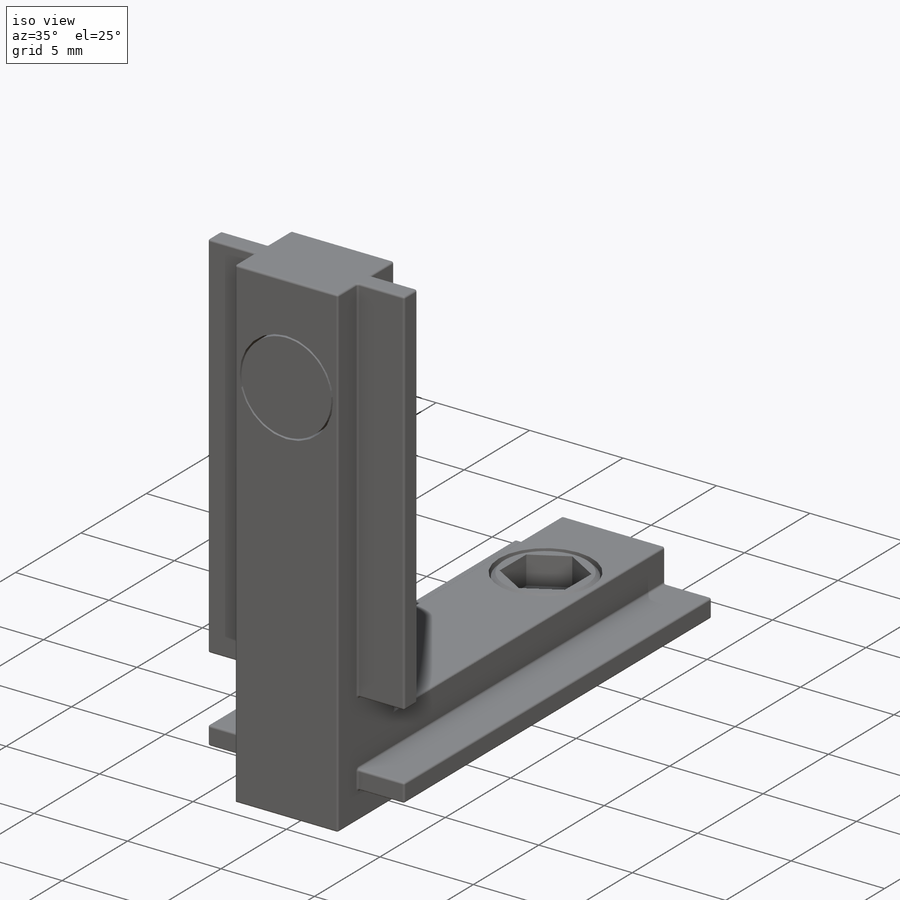
[diagram: iso view]
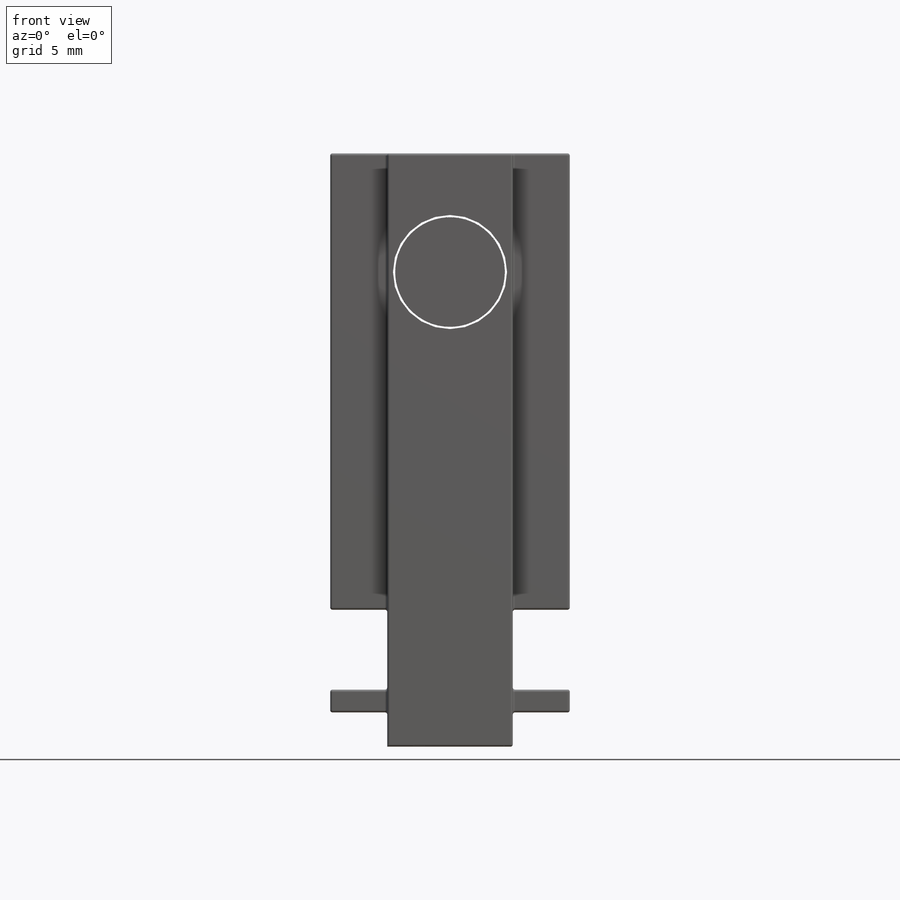
[diagram: front view]
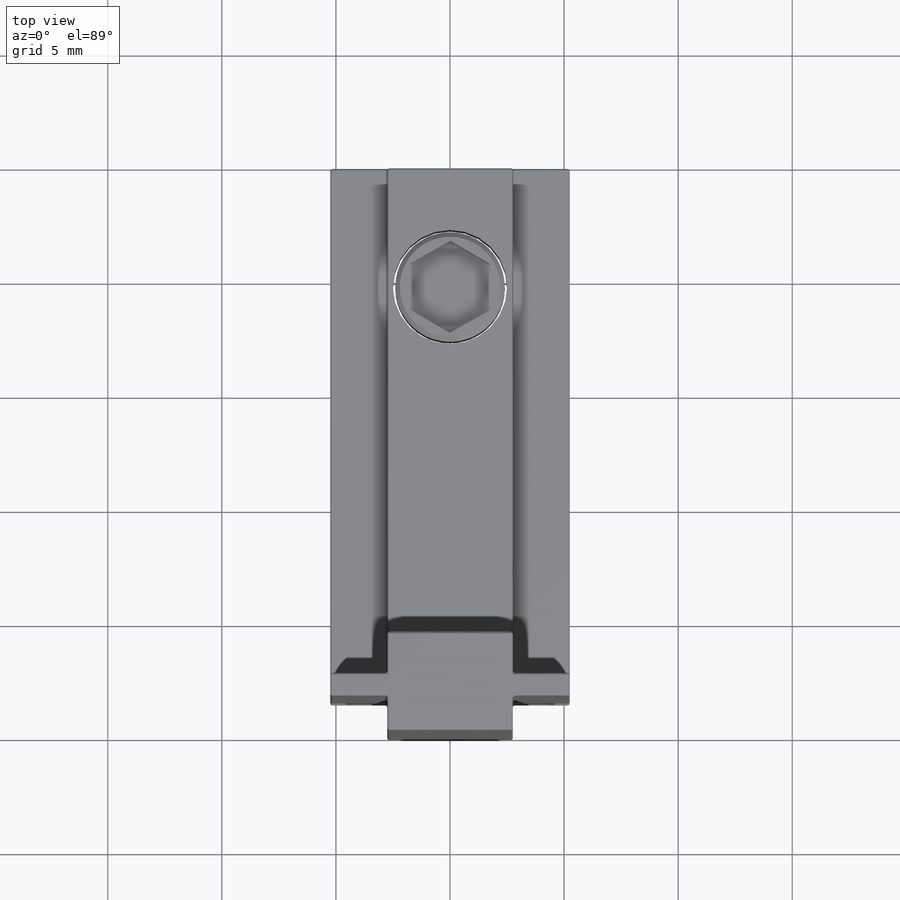
[diagram: top view]
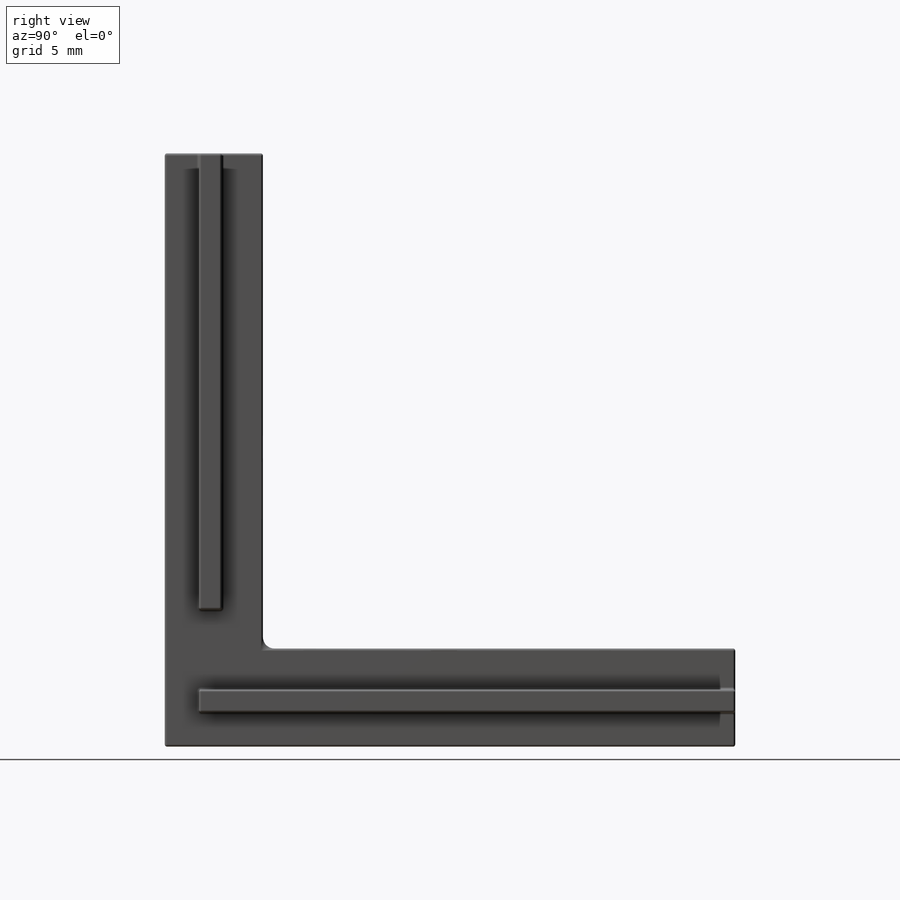
[diagram: right view]
SOLIDWORKS PART (.sldprt)
format: sldprt  version: not decoded by parser v0  size: 608,256 bytes
history: native  units: mm
features: sketch x11, extrude x5, cut_extrude x5, fillet x4, chamfer x2, material x1, mirror x1 (+12 scaffold rows collapsed)
feature tree (41):
  scaffold x12  (default folders/planes/origin — collapsed)
  material  "Material <not specified>"
  sketch  "Sketch1"
  sketch  "Sketch2"  dims[D1=5.5mm D2=2.5mm D3=1.0mm D4=1.5mm D5=1.8mm]
  extrude  "Boss-Extrude1"  Depth=25mm
  sketch  "Sketch3"
  cut_extrude  "Cut-Extrude1"  Depth=1.5mm
  sketch  "Sketch4"  dims[D1=4.3mm]
  extrude  "Boss-Extrude2"  Depth=21.7mm
  sketch  "Sketch5"  dims[D1=1.0mm D2=1.5mm D3=20.0mm]
  extrude  "Boss-Extrude3"  Depth=2.5mm
  mirror  "Mirror1"
  fillet  "Fillet1"  Radius=0.1mm
  fillet  "Fillet2"  Radius=0.1mm
  fillet  "Fillet3"  Radius=0.1mm
  fillet  "Fillet4"  Radius=0.5mm
  sketch  "Sketch6"  dims[D2=5.0mm D1=15.0mm]
  cut_extrude  "Cut-Extrude2"  [1 undecoded]
  sketch  "Sketch7"  dims[D1=0.1mm]
  extrude  "Boss-Extrude4"  [1 undecoded]
  sketch  "Sketch8"  dims[D1=3.5mm]
  cut_extrude  "Cut-Extrude3"  Depth=1.5mm
  chamfer  "Chamfer1"  Distance=0.2mm Angle=45deg
  sketch  "Sketch9"  dims[D1=5.0mm D2=16.0mm]
  cut_extrude  "Cut-Extrude4"  [1 undecoded]
  sketch  "Sketch10"  dims[D1=0.1mm]
  extrude  "Boss-Extrude5"  [1 undecoded]
  sketch  "Sketch11"  dims[D1=3.5mm]
  cut_extrude  "Cut-Extrude5"  Depth=1.5mm
  chamfer  "Chamfer2"  Distance=0.2mm Angle=45deg
decode coverage: 21 of 28 modeling features carry decoded parameters
note: 4 parameter values undecoded
summary: no parameter record found for 4 features
note: suppression state not decoded; provenance and decode notes live in map.json
